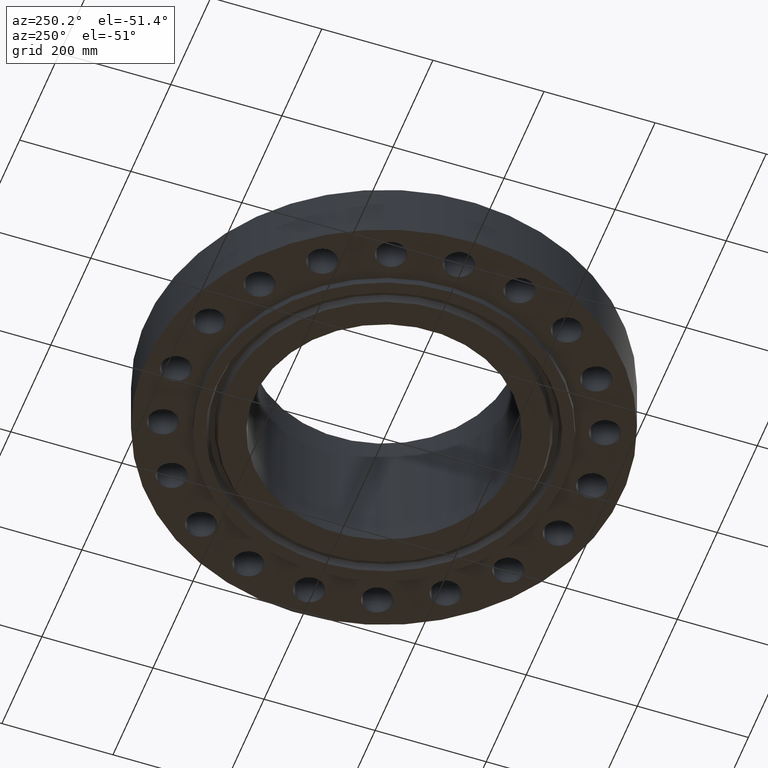
[diagram: clean part render]
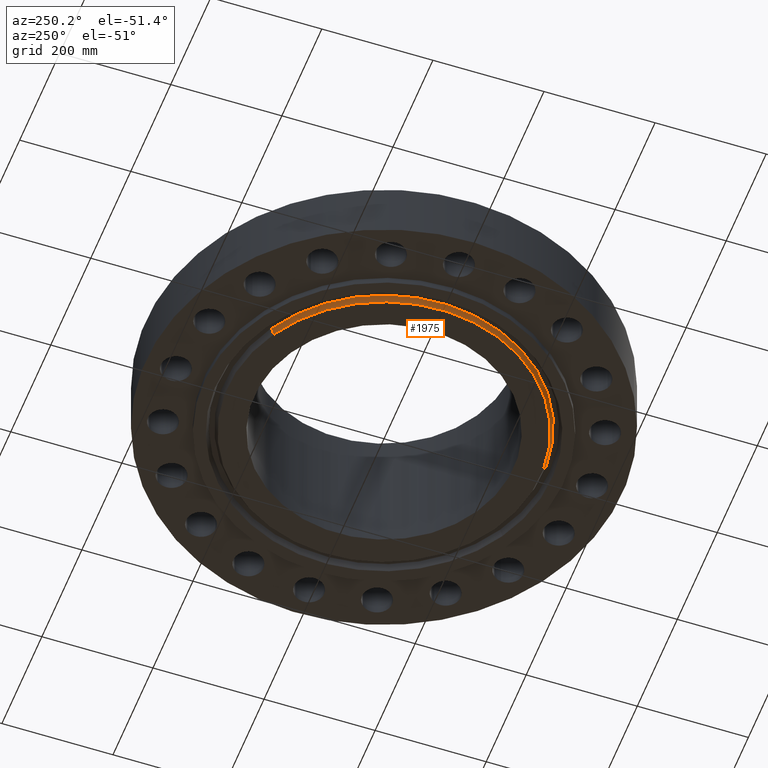
[diagram: same view with one face highlighted and labeled with its STEP entity id]
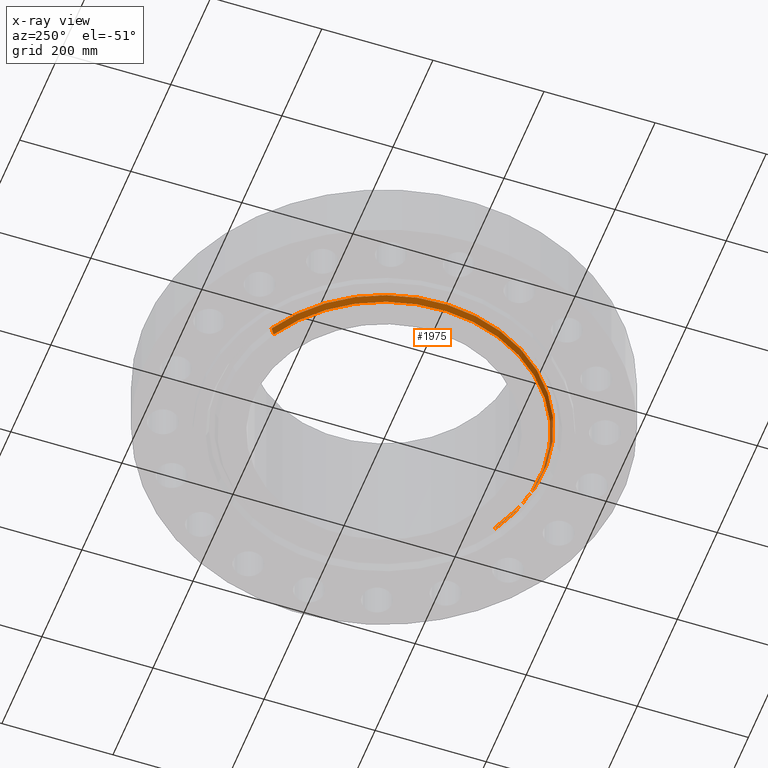
[diagram: x-ray of the same camera — body ghosted, the highlighted face saturated]
A machine part, auxiliary view. The second image highlights one B-rep face of the part: STEP entity #1975.
The next image is the same camera in x-ray: the body ghosted, the highlighted face saturated — about 0% of this face is hidden behind the body in this view.
In plain terms, the highlighted conical surface has half-angle 23 deg.
Its self-contained STEP definition (entity closure, byte-faithful):
#1783=AXIS2_PLACEMENT_3D('Circle Axis2P3D',#1781,#1782,$) ;
#1937=AXIS2_PLACEMENT_3D('Circle Axis2P3D',#1935,#1936,$) ;
#1950=AXIS2_PLACEMENT_3D('Cone Axis2P3D',#1947,#1948,#1949) ;
#1776=CARTESIAN_POINT('Vertex',(-5.32610610731,9.74937183398,-0.500000000002)) ;
#1778=CARTESIAN_POINT('Vertex',(5.32610610731,-9.74937183398,-0.500000000002)) ;
#1781=CARTESIAN_POINT('Axis2P3D Location',(2.23792987641E-015,-1.1189649382E-015,-0.500000000002)) ;
#1913=CARTESIAN_POINT('Vertex',(5.42010884766,-9.92144269599,-0.0380793044696)) ;
#1920=CARTESIAN_POINT('Vertex',(-5.42010884766,9.92144269599,-0.0380793044696)) ;
#1935=CARTESIAN_POINT('Axis2P3D Location',(0.,0.,-0.0380793044696)) ;
#1947=CARTESIAN_POINT('Axis2P3D Location',(0.,0.,-0.560000000002)) ;
#1952=CARTESIAN_POINT('Line Origine',(-5.37310747749,9.83540726499,-0.269039652236)) ;
#1957=CARTESIAN_POINT('Line Origine',(5.37310747749,-9.83540726499,-0.269039652236)) ;
#1782=DIRECTION('Axis2P3D Direction',(0.,0.,-0.0393700787402)) ;
#1936=DIRECTION('Axis2P3D Direction',(0.,0.,0.0393700787402)) ;
#1948=DIRECTION('Axis2P3D Direction',(0.,0.,0.0393700787402)) ;
#1949=DIRECTION('Axis2P3D XDirection',(-0.0188750212049,0.0345504945626,0.)) ;
#1953=DIRECTION('Vector Direction',(-0.00737505833565,0.0134999537303,0.0362403485611)) ;
#1958=DIRECTION('Vector Direction',(0.00737505833565,-0.0134999537303,0.0362403485611)) ;
#1954=VECTOR('Line Direction',#1953,0.0393700787402) ;
#1959=VECTOR('Line Direction',#1958,0.0393700787402) ;
#1970=ORIENTED_EDGE('',*,*,#1961,.F.) ;
#1971=ORIENTED_EDGE('',*,*,#1939,.F.) ;
#1972=ORIENTED_EDGE('',*,*,#1956,.T.) ;
#1973=ORIENTED_EDGE('',*,*,#1785,.F.) ;
#1975=ADVANCED_FACE('PartBody',(#1974),#1951,.T.) ;
#1784=CIRCLE('generated circle',#1783,11.10935) ;
#1938=CIRCLE('generated circle',#1937,11.3054237024) ;
#1951=CONICAL_SURFACE('Cone',#1950,11.0838815111,0.401425727959) ;
#1785=EDGE_CURVE('',#1779,#1777,#1784,.T.) ;
#1939=EDGE_CURVE('',#1921,#1914,#1938,.T.) ;
#1956=EDGE_CURVE('',#1921,#1777,#1955,.F.) ;
#1961=EDGE_CURVE('',#1914,#1779,#1960,.F.) ;
#1969=EDGE_LOOP('',(#1970,#1971,#1972,#1973)) ;
#1974=FACE_OUTER_BOUND('',#1969,.T.) ;
#1955=LINE('Line',#1952,#1954) ;
#1960=LINE('Line',#1957,#1959) ;
#1777=VERTEX_POINT('',#1776) ;
#1779=VERTEX_POINT('',#1778) ;
#1914=VERTEX_POINT('',#1913) ;
#1921=VERTEX_POINT('',#1920) ;